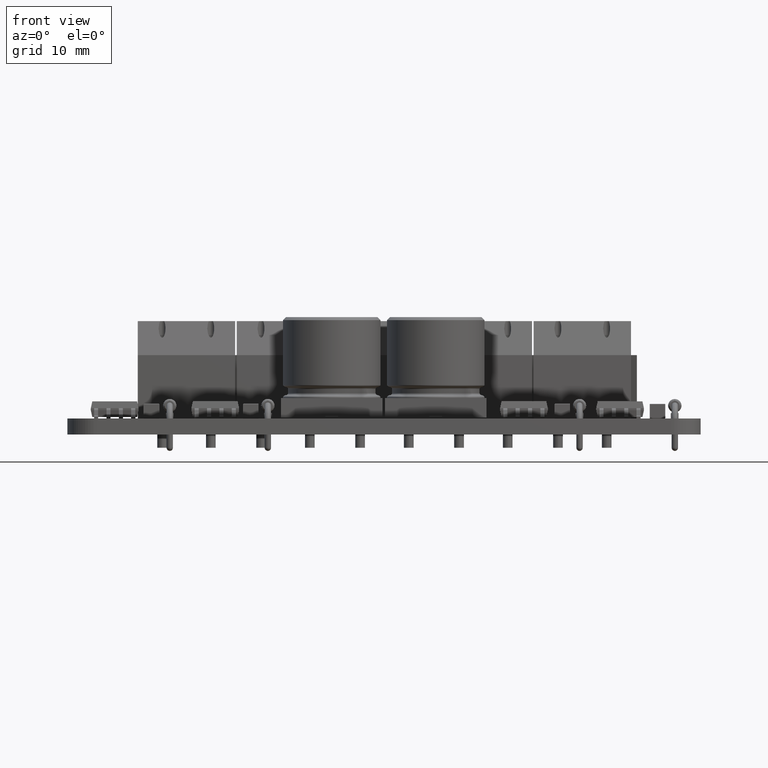
[diagram: clean part render]
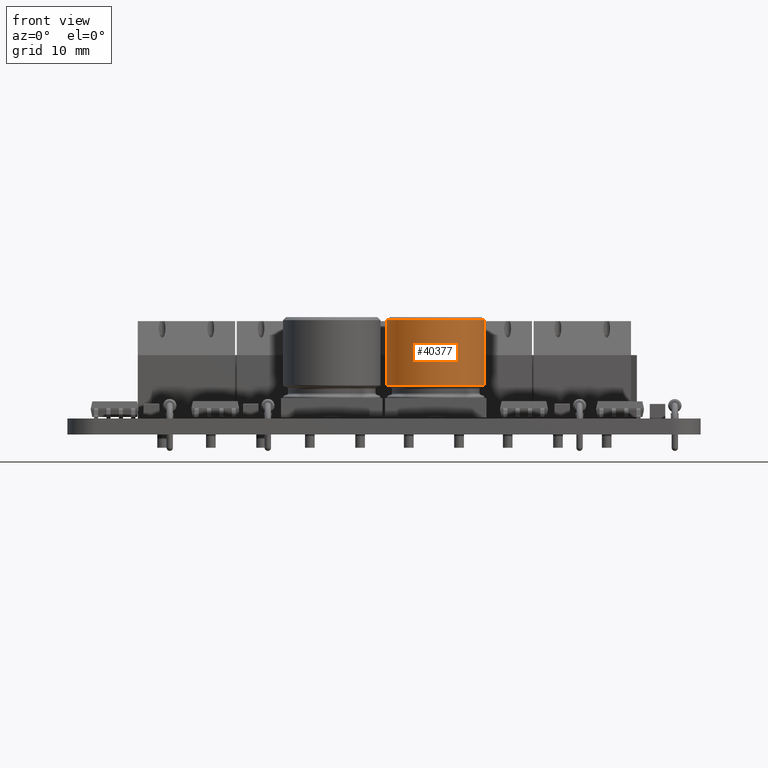
[diagram: same view with one face highlighted and labeled with its STEP entity id]
A machine part, front view. The second image highlights one B-rep face of the part: STEP entity #40377.
In plain terms, the highlighted cylindrical surface (partial cylindrical patch) has radius 5 mm, axis along (-0, -0, -1).
Its self-contained STEP definition (entity closure, byte-faithful):
#38177 = VERTEX_POINT('',#38178);
#38178 = CARTESIAN_POINT('',(6.123233995737E-016,-5.,10.1));
#38185 = VERTEX_POINT('',#38186);
#38186 = CARTESIAN_POINT('',(0.E+000,5.,10.1));
#38208 = EDGE_CURVE('',#38177,#38209,#38211,.T.);
#38209 = VERTEX_POINT('',#38210);
#38210 = CARTESIAN_POINT('',(6.123233995737E-016,-5.,3.448806130178));
#38211 = LINE('',#38212,#38213);
#38212 = CARTESIAN_POINT('',(6.123233995737E-016,-5.,0.6));
#38213 = VECTOR('',#38214,1.);
#38214 = DIRECTION('',(-0.E+000,1.224646799147E-016,-1.));
#38217 = VERTEX_POINT('',#38218);
#38218 = CARTESIAN_POINT('',(0.E+000,5.,3.448806130178));
#38225 = EDGE_CURVE('',#38185,#38217,#38226,.T.);
#38226 = LINE('',#38227,#38228);
#38227 = CARTESIAN_POINT('',(0.E+000,5.,0.6));
#38228 = VECTOR('',#38229,1.);
#38229 = DIRECTION('',(-0.E+000,1.224646799147E-016,-1.));
#40364 = EDGE_CURVE('',#38209,#38217,#40365,.T.);
#40365 = CIRCLE('',#40366,5.);
#40366 = AXIS2_PLACEMENT_3D('',#40367,#40368,#40369);
#40367 = CARTESIAN_POINT('',(0.E+000,-3.488781308714E-016,3.448806130178
    ));
#40368 = DIRECTION('',(-0.E+000,1.224646799147E-016,-1.));
#40369 = DIRECTION('',(0.E+000,1.,1.224646799147E-016));
#40377 = ADVANCED_FACE('',(#40378),#40390,.T.);
#40378 = FACE_BOUND('',#40379,.T.);
#40379 = EDGE_LOOP('',(#40380,#40381,#40388,#40389));
#40380 = ORIENTED_EDGE('',*,*,#38208,.F.);
#40381 = ORIENTED_EDGE('',*,*,#40382,.T.);
#40382 = EDGE_CURVE('',#38177,#38185,#40383,.T.);
#40383 = CIRCLE('',#40384,5.);
#40384 = AXIS2_PLACEMENT_3D('',#40385,#40386,#40387);
#40385 = CARTESIAN_POINT('',(0.E+000,-1.16341445919E-015,10.1));
#40386 = DIRECTION('',(-0.E+000,1.224646799147E-016,-1.));
#40387 = DIRECTION('',(0.E+000,1.,1.224646799147E-016));
#40388 = ORIENTED_EDGE('',*,*,#38225,.T.);
#40389 = ORIENTED_EDGE('',*,*,#40364,.F.);
#40390 = CYLINDRICAL_SURFACE('',#40391,5.);
#40391 = AXIS2_PLACEMENT_3D('',#40392,#40393,#40394);
#40392 = CARTESIAN_POINT('',(0.E+000,0.E+000,0.6));
#40393 = DIRECTION('',(-0.E+000,1.224646799147E-016,-1.));
#40394 = DIRECTION('',(0.E+000,1.,1.224646799147E-016));